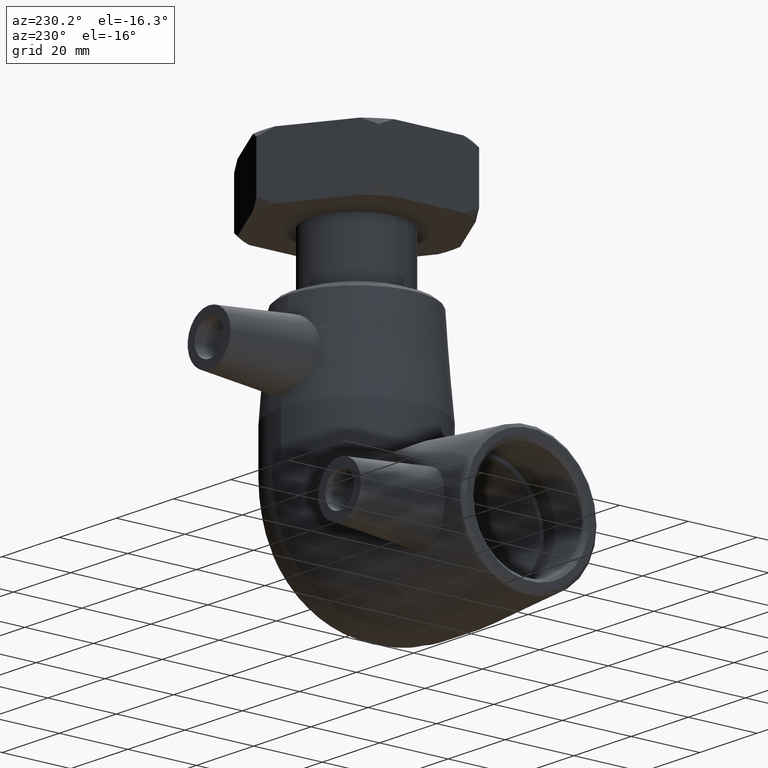
[diagram: clean part render]
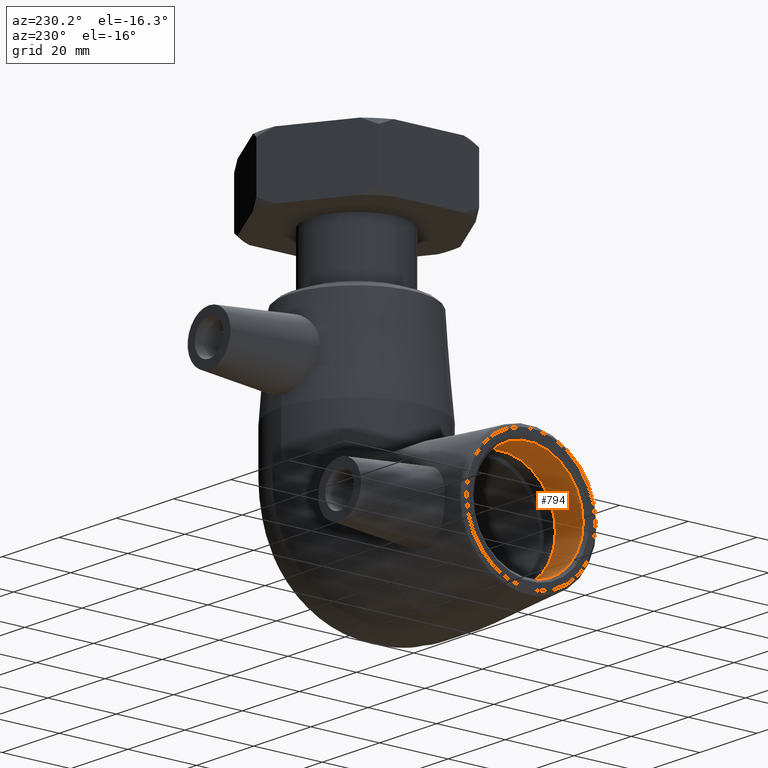
[diagram: same view with one face highlighted and labeled with its STEP entity id]
A machine part, auxiliary view. The second image highlights one B-rep face of the part: STEP entity #794.
In plain terms, the highlighted cylindrical surface (bore or boss wall) has radius 16 mm, axis along (1, -0, 0).
Its self-contained STEP definition (entity closure, byte-faithful):
#82=CYLINDRICAL_SURFACE('',#883,16.);
#127=FACE_BOUND('',#259,.T.);
#187=FACE_OUTER_BOUND('',#258,.T.);
#258=EDGE_LOOP('',(#676));
#259=EDGE_LOOP('',(#677));
#344=CIRCLE('',#879,16.);
#347=CIRCLE('',#884,16.);
#420=VERTEX_POINT('',#1374);
#423=VERTEX_POINT('',#1382);
#516=EDGE_CURVE('',#420,#420,#344,.T.);
#519=EDGE_CURVE('',#423,#423,#347,.T.);
#676=ORIENTED_EDGE('',*,*,#519,.T.);
#677=ORIENTED_EDGE('',*,*,#516,.F.);
#794=ADVANCED_FACE('',(#187,#127),#82,.F.);
#879=AXIS2_PLACEMENT_3D('',#1375,#1060,#1061);
#883=AXIS2_PLACEMENT_3D('',#1381,#1068,#1069);
#884=AXIS2_PLACEMENT_3D('',#1383,#1070,#1071);
#1060=DIRECTION('center_axis',(1.,-2.27504718160893E-18,0.));
#1061=DIRECTION('ref_axis',(0.,-1.,0.));
#1068=DIRECTION('center_axis',(1.,-2.27504718160893E-18,0.));
#1069=DIRECTION('ref_axis',(0.,1.,0.));
#1070=DIRECTION('center_axis',(1.,-2.27504718160893E-18,0.));
#1071=DIRECTION('ref_axis',(0.,0.,-1.));
#1374=CARTESIAN_POINT('',(-60.04,16.,1.95943487863577E-15));
#1375=CARTESIAN_POINT('Origin',(-60.04,-2.18404529434459E-18,0.));
#1381=CARTESIAN_POINT('Origin',(-55.6666666666667,-1.2133584968581E-17,
0.));
#1382=CARTESIAN_POINT('',(-50.3333333333333,16.,0.));
#1383=CARTESIAN_POINT('Origin',(-50.3333333333333,-2.42671699371619E-17,
0.));